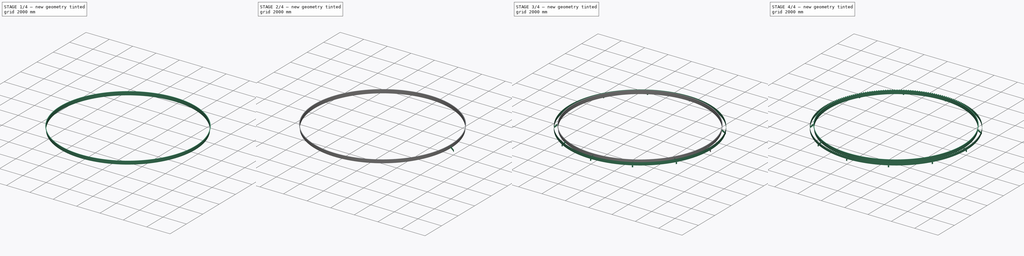
[diagram: build sequence overview — one tinted view per stage of 4, left to right]
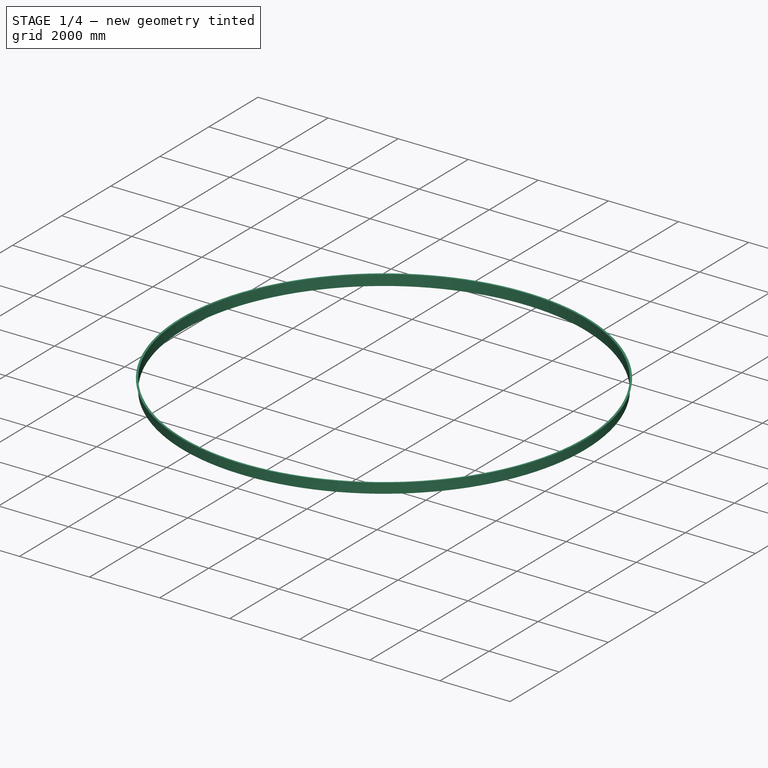
[diagram: stage 1 of 4 — iso view after this stage's code; geometry added in this stage tinted green]
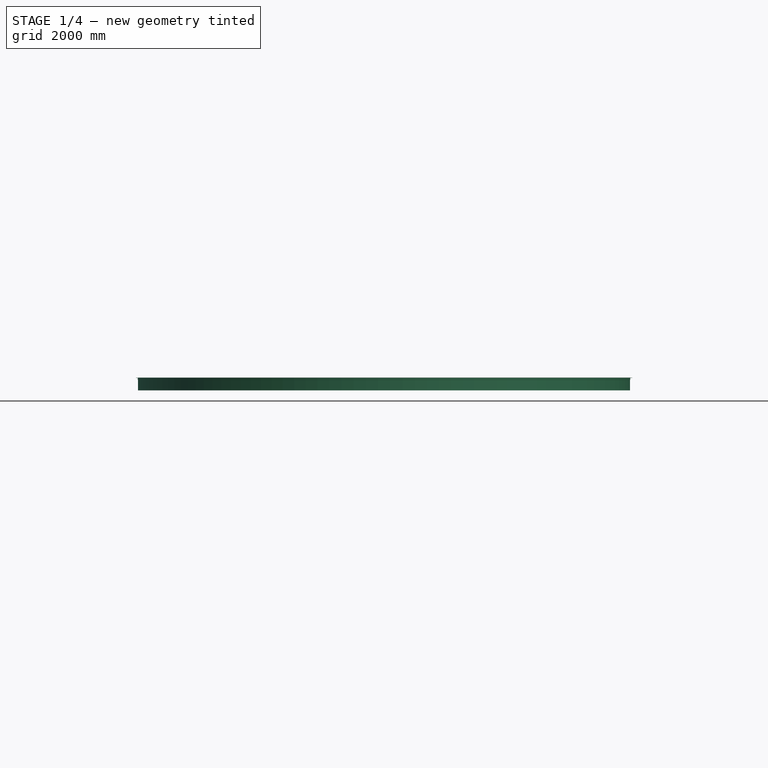
[diagram: stage 1 of 4 — front view after this stage's code; geometry added in this stage tinted green]
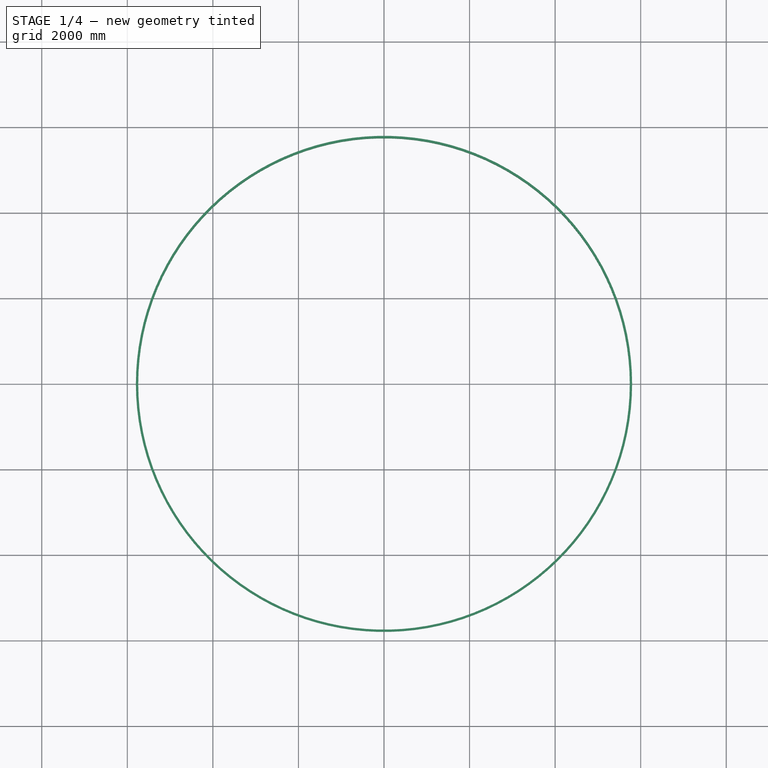
[diagram: stage 1 of 4 — top view after this stage's code; geometry added in this stage tinted green]
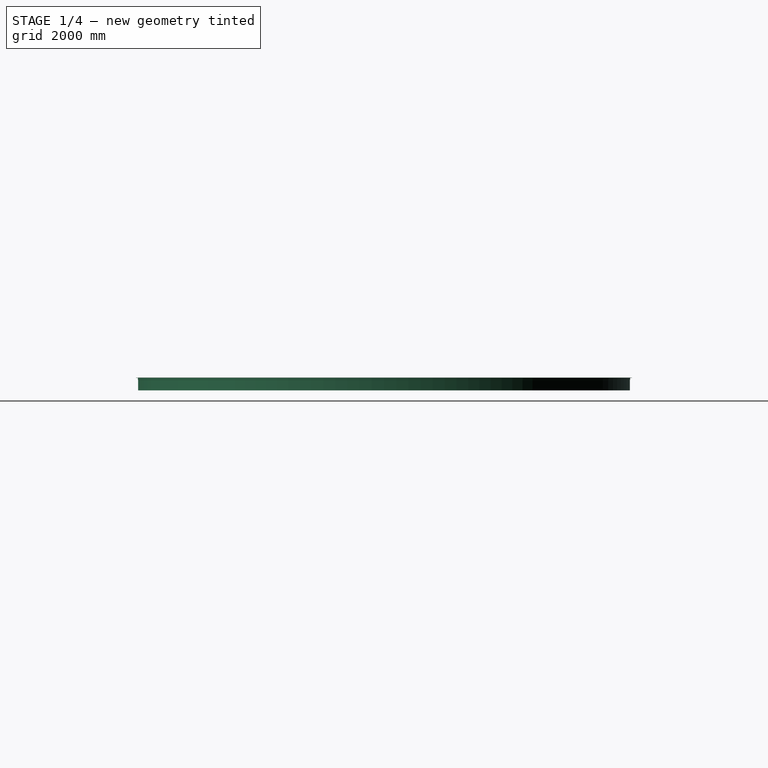
[diagram: stage 1 of 4 — right view after this stage's code; geometry added in this stage tinted green]
FCSTD DOCUMENT  (FreeCAD 1.0R39109 (Git))
Label: bufflePlate
License: All rights reserved
LicenseURL: https://en.wikipedia.org/wiki/All_rights_reserved
objects: Sketcher::SketchObject×4, Part::FeaturePython×4, Part::Revolution×3, Part::Extrusion×2, Part::Compound×2, Part::Cut×1, Spreadsheet::Sheet×1, Part::Mirroring×1, App::Part×1
note: 19 computed .brp shape members not serialized (recipe doc carries the construction recipe); baked Part::Feature solids carry a one-line shape summary decoded from their .brp

FEATURE [Sketcher::SketchObject] Sketch002
  ArcFitTolerance = 0
  FullyConstrained = true
  MakeInternals = false
  Placement = pos=(0,0,0) rot=(1,0,0;1.5708rad)
  expr: .Constraints.h0 = Spreadsheet.h0
  expr: Constraints[11] = Spreadsheet.dia / 2 - (450 + 300)
  sketch-geometry (4):
    g0: LineSegment StartX=5745 StartY=80 StartZ=0 EndX=5750 EndY=80 EndZ=0
    g1: LineSegment StartX=5750 StartY=80 StartZ=0 EndX=5750 EndY=380 EndZ=0
    g2: LineSegment StartX=5750 StartY=380 StartZ=0 EndX=5745 EndY=380 EndZ=0
    g3: LineSegment StartX=5745 StartY=380 StartZ=0 EndX=5745 EndY=80 EndZ=0
  constraints (12):
    c: Coincident(g0,g1)
    c: Coincident(g1,g2)
    c: Coincident(g2,g3)
    c: Coincident(g3,g0)
    c: Horizontal(g0)
    c: Horizontal(g2)
    c: Vertical(g1)
    c: Vertical(g3)
    c: DistanceX(g2,g2) = 5
    c: DistanceY(g1,g1) = 300  'h0'
    c: DistanceY(g-3,g1) = 130
    c: Distance(g1,g-2) = 5750
FEATURE [Part::Revolution] Revolve001
  Angle = 360
  Axis = (0,0,1)
  Base = (0,0,0)
  FaceMakerClass = Part::FaceMakerBullseye
  Solid = true
  Source = -> Sketch002
  Symmetric = false
FEATURE [Part::FeaturePython] AngleSteel  # WARN: FeaturePython — macro-defined, semantics opaque (R4)
  A = 50
  B = 50
  L = 1000
  Placement = pos=(5750,0,474) rot=(0,1,0;1.5708rad)
  Solid = false
  g0 = 7.85
  mass = 0
  size = 7
  standard = SS_Equal
  t = 6
  expr: .Placement.Base.x = Spreadsheet.dia / 2 - 750
FEATURE [Part::Revolution] Revolve002
  Angle = 360
  Axis = (0,0,1)
  Base = (0,0,0)
  FaceMakerClass = Part::FaceMakerBullseye
  Placement = pos=(0,0,-94) rot=(0,0,1;0rad)
  Solid = false
  Source = -> AngleSteel
  Symmetric = false
FEATURE [Part::Compound] Compound001  label="buffle001"
  Links = -> [Revolve001,Revolve002]
  Placement = pos=(0,0,-50) rot=(0,0,1;0rad)
FEATURE [App::Part] Part  label="buffle"
  Group = -> [Spreadsheet,Revolve,Revolve001,Array,Sketch002,Sketch,Sketch003,Sketch001,Cut,Extrude001,Extrude,AngleSteel,Revolve002,AngleSteel001,Mirror,Compound,Array001,Compound001]
  Origin = -> Origin
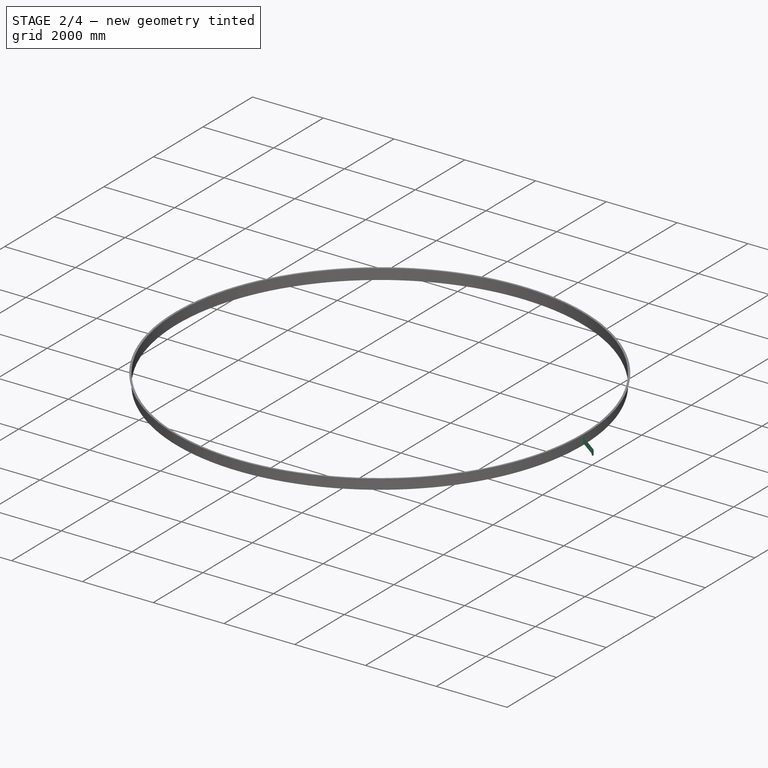
[diagram: stage 2 of 4 — iso view after this stage's code; geometry added in this stage tinted green]
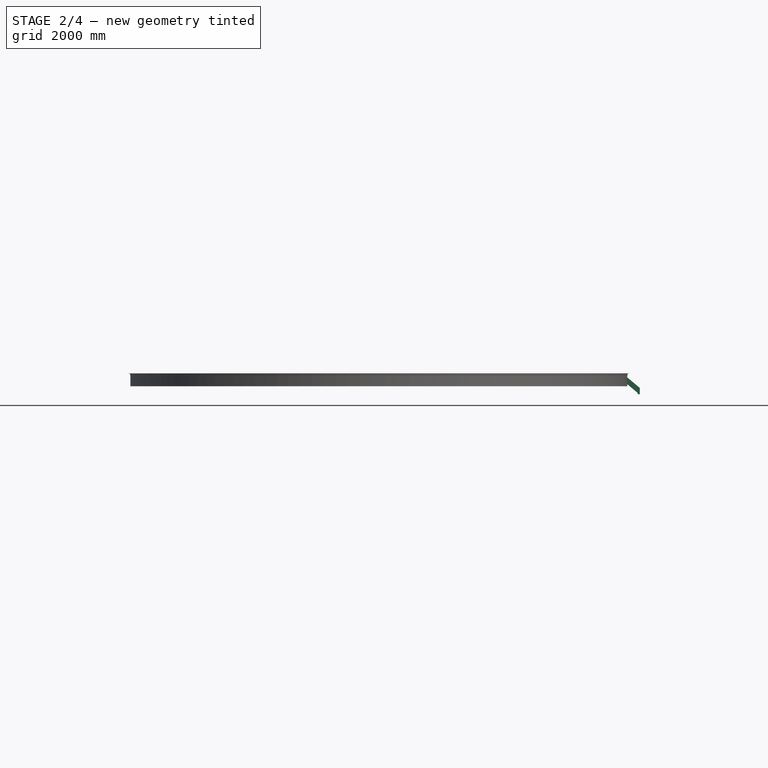
[diagram: stage 2 of 4 — front view after this stage's code; geometry added in this stage tinted green]
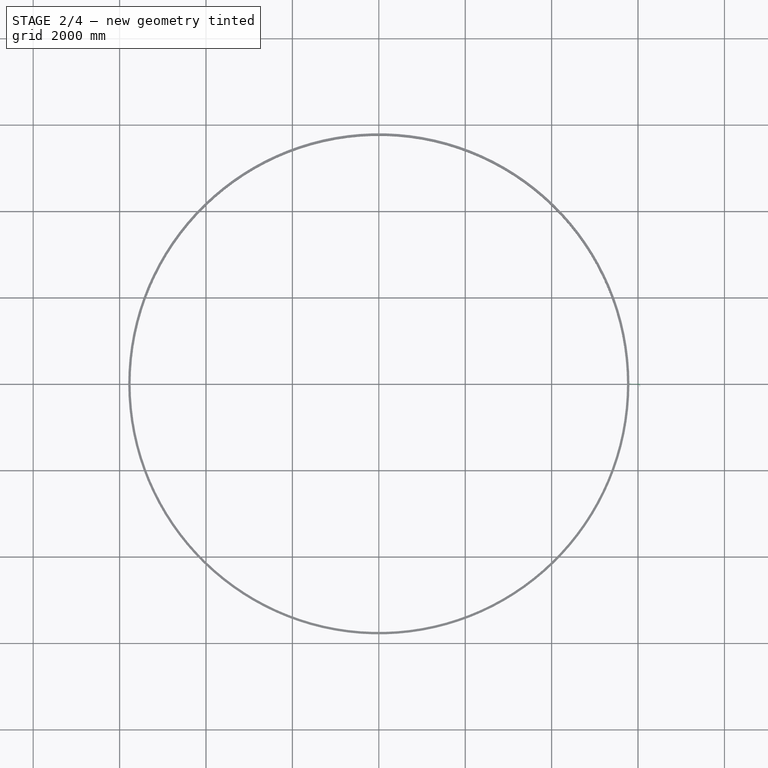
[diagram: stage 2 of 4 — top view after this stage's code; geometry added in this stage tinted green]
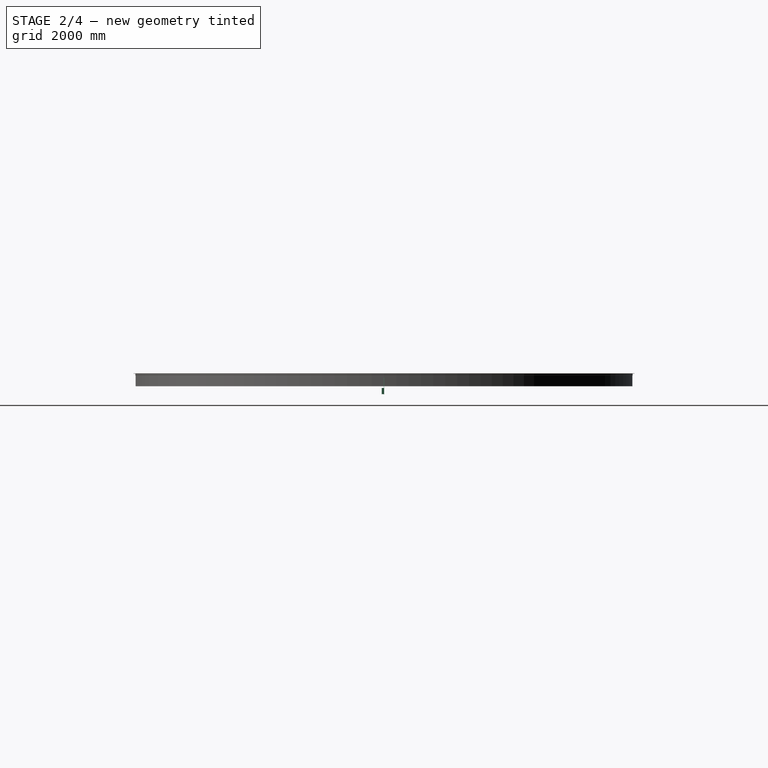
[diagram: stage 2 of 4 — right view after this stage's code; geometry added in this stage tinted green]
FEATURE [Sketcher::SketchObject] Sketch003
  ArcFitTolerance = 0
  FullyConstrained = true
  MakeInternals = false
  Placement = pos=(0,0,0) rot=(1,0,0;1.5708rad)
  expr: Constraints[10] = Spreadsheet.dia / 2 - (460 + 290)
  sketch-geometry (4):
    g0: LineSegment StartX=5750 StartY=80 StartZ=0 EndX=6040 EndY=-163.339 EndZ=0
    g1: LineSegment StartX=6040 StartY=-163.339 StartZ=0 EndX=6040 EndY=-6.69002 EndZ=0
    g2: LineSegment StartX=6040 StartY=-6.69002 StartZ=0 EndX=5750 EndY=236.649 EndZ=0
    g3: LineSegment StartX=5750 StartY=236.649 StartZ=0 EndX=5750 EndY=80 EndZ=0
  constraints (12):
    c: Coincident(g0,g1)
    c: Vertical(g1)
    c: Coincident(g1,g2)
    c: Coincident(g2,g3)
    c: Coincident(g3,g0)
    c: Vertical(g3)
    c: Parallel(g2,g0)
    c: DistanceX(g0,g0) = 290
    c: Distance(g1,g0) = 120
    c: Angle(g0,g3) = 2.26893
    c: Distance(g0,g-2) = 5750
    c: Distance(g0,g-1) = 80
FEATURE [Part::Extrusion] Extrude001
  Base = -> Sketch003
  Dir = (0,-1,2e-16)
  DirMode = 2
  FaceMakerClass = Part::FaceMakerBullseye
  FaceMakerMode = 3
  LengthFwd = 6
  LengthRev = 0
  Solid = true
  Symmetric = true
FEATURE [Spreadsheet::Sheet] Spreadsheet
  cells = A3='tankDia dia; B3(dia)=13000; A4='waterWay width; B4(W0)=450; A5='nonber of support; B5(n)=12; A6='buffleHight  h0; B6(h0)=300
FEATURE [Part::FeaturePython] AngleSteel001  # WARN: FeaturePython — macro-defined, semantics opaque (R4)
  A = 50
  B = 50
  L = 140
  Placement = pos=(6015,28,-150) rot=(0,0,1;3.14159rad)
  Solid = true
  g0 = 7.85
  mass = 0.620249
  size = 7
  standard = SS_Equal
  t = 6
  expr: .Placement.Base.x = Spreadsheet.dia / 2 - 485
FEATURE [Part::Mirroring] Mirror  label="AngleSteel001 (mirrored)"
  Base = (4800,0,0)
  Normal = (0,-1,0)
  Source = -> AngleSteel001
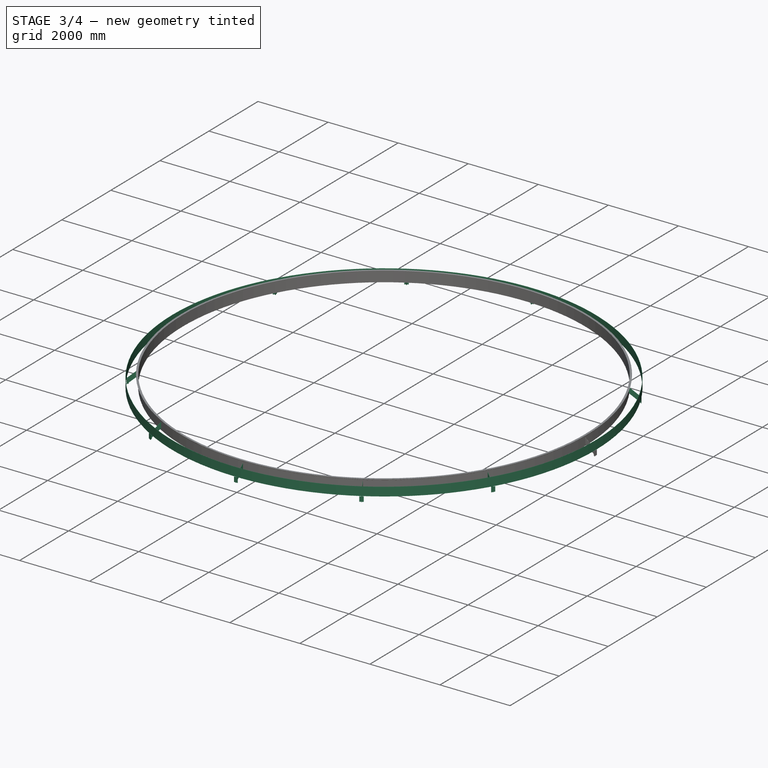
[diagram: stage 3 of 4 — iso view after this stage's code; geometry added in this stage tinted green]
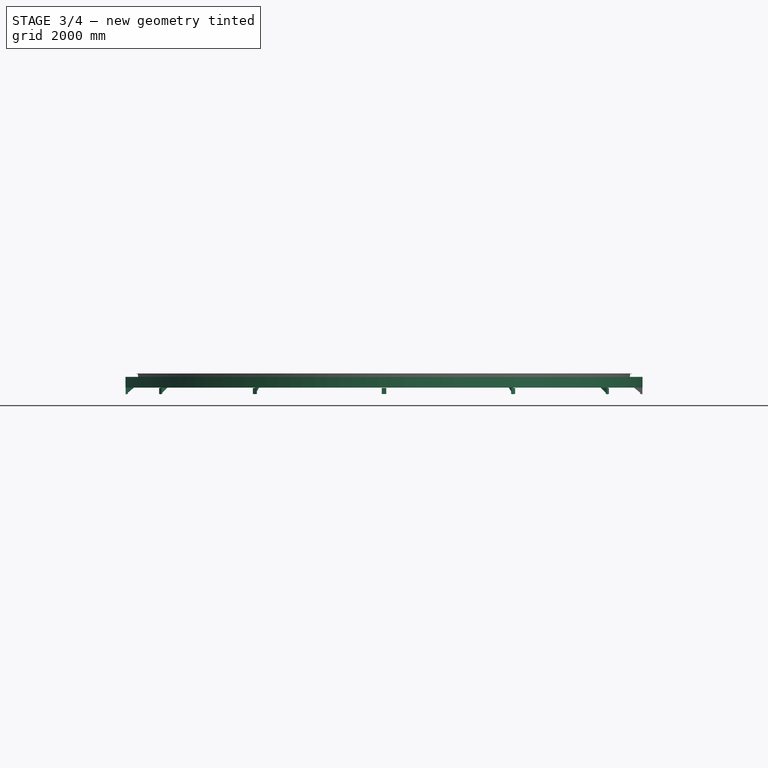
[diagram: stage 3 of 4 — front view after this stage's code; geometry added in this stage tinted green]
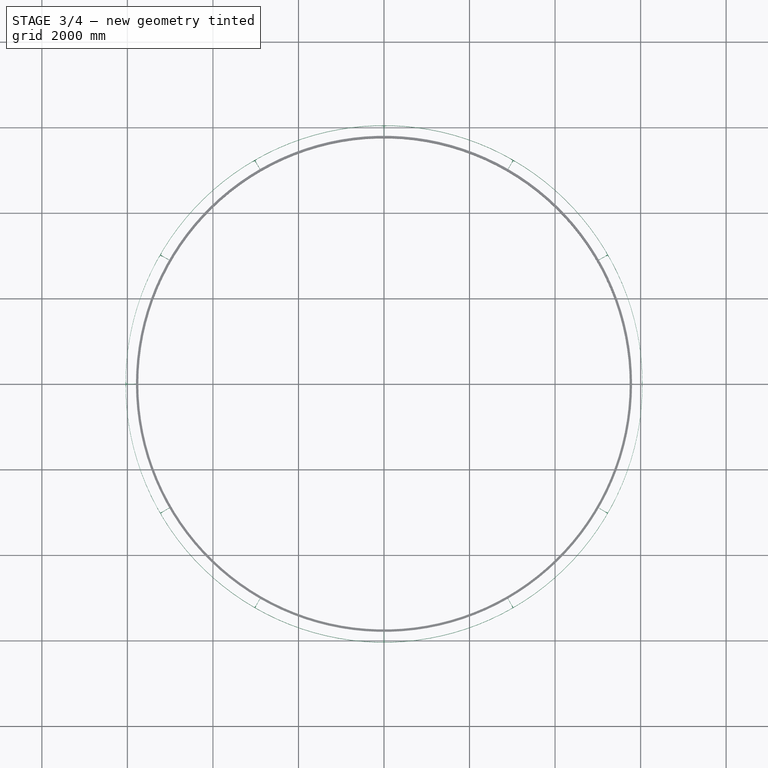
[diagram: stage 3 of 4 — top view after this stage's code; geometry added in this stage tinted green]
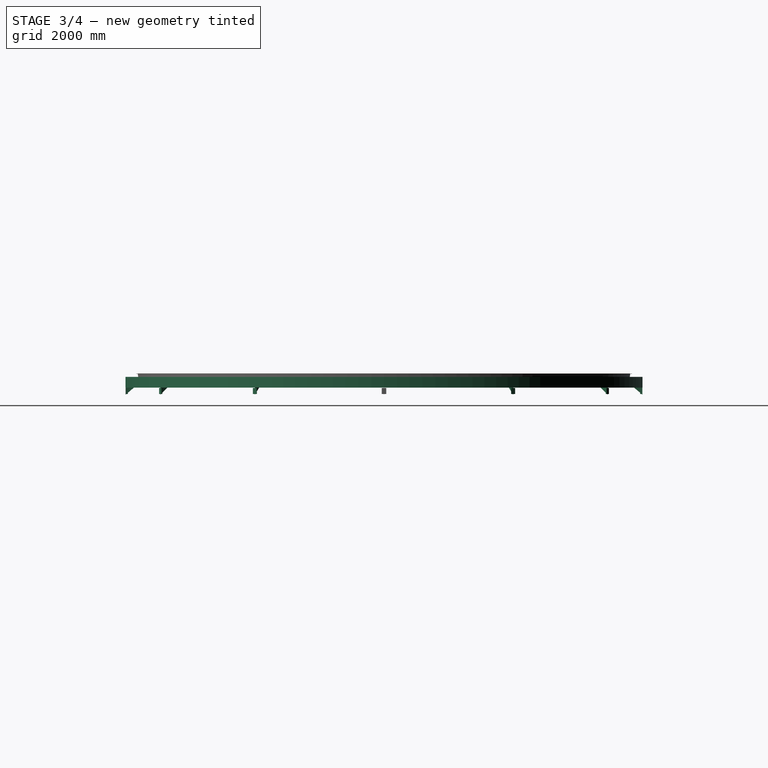
[diagram: stage 3 of 4 — right view after this stage's code; geometry added in this stage tinted green]
FEATURE [Sketcher::SketchObject] Sketch
  ArcFitTolerance = 0
  FullyConstrained = true
  MakeInternals = false
  Placement = pos=(0,0,0) rot=(1,0,0;1.5708rad)
  expr: Constraints[11] = Spreadsheet.dia / 2 - 460
  sketch-geometry (4):
    g0: LineSegment StartX=6045 StartY=0 StartZ=0 EndX=6040 EndY=0 EndZ=0
    g1: LineSegment StartX=6040 StartY=0 StartZ=0 EndX=6040 EndY=250 EndZ=0
    g2: LineSegment StartX=6040 StartY=250 StartZ=0 EndX=6045 EndY=250 EndZ=0
    g3: LineSegment StartX=6045 StartY=250 StartZ=0 EndX=6045 EndY=0 EndZ=0
  constraints (12):
    c: Coincident(g0,g1)
    c: Coincident(g1,g2)
    c: Coincident(g2,g3)
    c: Coincident(g3,g0)
    c: Horizontal(g0)
    c: Horizontal(g2)
    c: Vertical(g1)
    c: Vertical(g3)
    c: PointOnObject(g0,g-1)
    c: Distance(g2) = 5
    c: DistanceY(g1,g1) = 250
    c: DistanceX(g-1,g0) = 6040
FEATURE [Part::Revolution] Revolve
  Angle = 360
  Axis = (0,0,1)
  Base = (0,0,0)
  FaceMakerClass = Part::FaceMakerBullseye
  Solid = true
  Source = -> Sketch
  Symmetric = false
FEATURE [Part::Compound] Compound  label="support"
  Links = -> [AngleSteel001,Mirror,Extrude001]
FEATURE [Part::FeaturePython] Array001  # Draft array (typed FeaturePython)
  AlwaysSyncPlacement = false
  Angle = 360
  ArrayType = 1
  Axis = (0,0,1)
  Base = -> Compound
  Center = (0,0,0)
  Count = 12
  ExpandArray = false
  Fuse = false
  IntervalAxis = (0,0,0)
  IntervalX = (50,0,0)
  IntervalY = (0,50,0)
  IntervalZ = (0,0,50)
  NumberCircles = 3
  NumberPolar = 12
  NumberX = 2
  NumberY = 2
  NumberZ = 1
  PlacementList = 12 placements: [(0,0,0),(0,0,0),(0,0,0),(0,0,0),(0,0,0),(0,0,0),(0,0,0),(0,0,0),(0,0,0),(0,0,0),(0,0,0),(0,0,0)]
  RadialDistance = 50
  ScaleList = (12) [(1,1,1),(1,1,1),(1,1,1),(1,1,1),(1,1,1),(1,1,1),(1,1,1),(1,1,1),(1,1,1),(1,1,1),(1,1,1),(1,1,1)]
  Symmetry = 1
  TangentialDistance = 25
  expr: NumberPolar = Spreadsheet.n
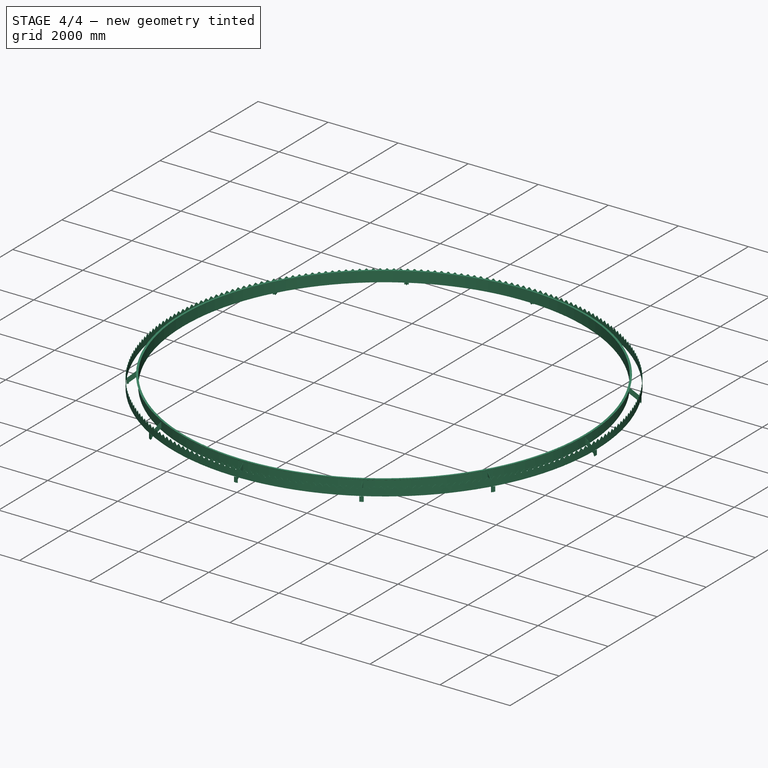
[diagram: stage 4 of 4 — iso view after this stage's code; geometry added in this stage tinted green]
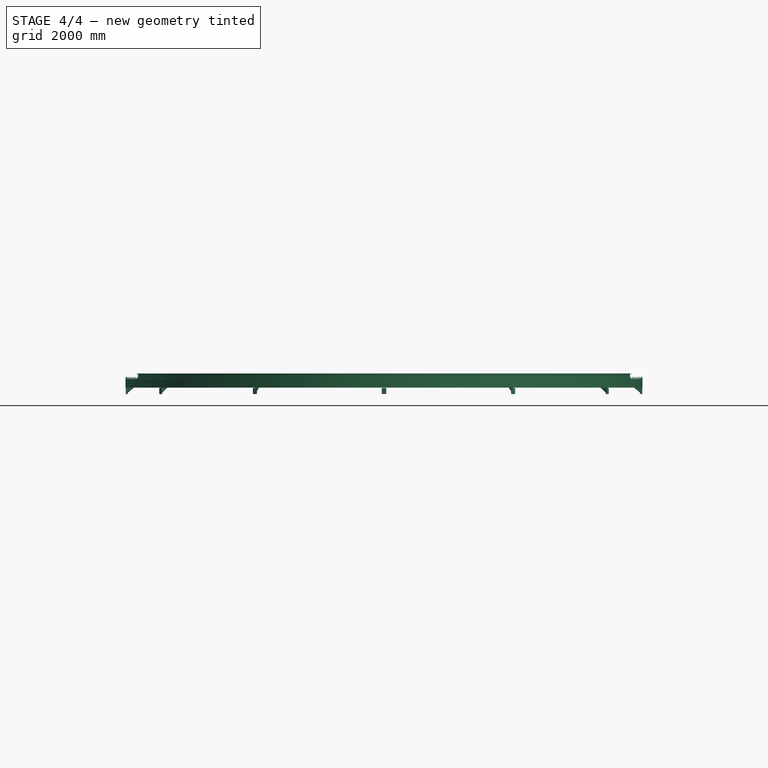
[diagram: stage 4 of 4 — front view after this stage's code; geometry added in this stage tinted green]
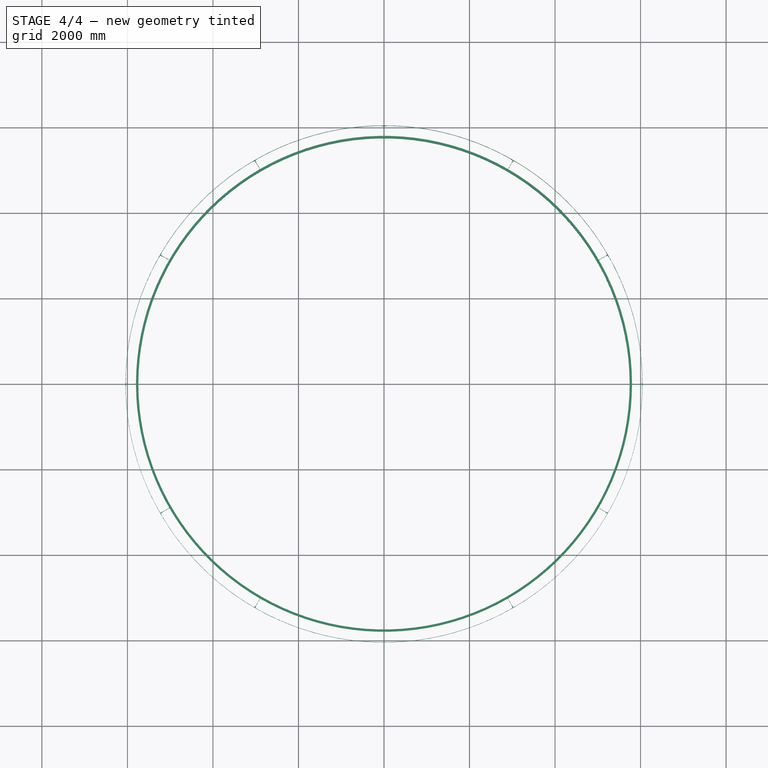
[diagram: stage 4 of 4 — top view after this stage's code; geometry added in this stage tinted green]
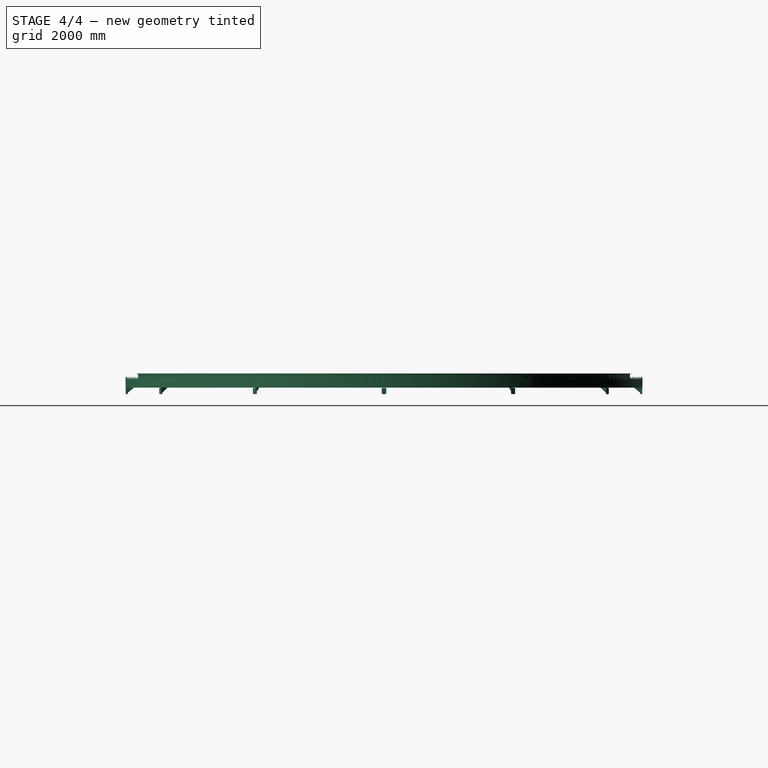
[diagram: stage 4 of 4 — right view after this stage's code; geometry added in this stage tinted green]
FEATURE [Sketcher::SketchObject] Sketch001
  ArcFitTolerance = 0
  ExternalGeometry = -> [Revolve]
  FullyConstrained = true
  MakeInternals = false
  Placement = pos=(0,0,0) rot=(1,0,0;1.5708rad)
  sketch-geometry (3):
    g0: LineSegment StartX=-70 StartY=250 StartZ=0 EndX=70 EndY=250 EndZ=0
    g1: LineSegment StartX=70 StartY=250 StartZ=0 EndX=0 EndY=180 EndZ=0
    g2: LineSegment StartX=0 StartY=180 StartZ=0 EndX=-70 EndY=250 EndZ=0
  constraints (9):
    c: Horizontal(g0)
    c: Coincident(g0,g1)
    c: PointOnObject(g1,g-2)
    c: Coincident(g1,g2)
    c: Coincident(g2,g0)
    c: Angle(g1,g2) = 1.5708
    c: PointOnObject(g0,g-3)
    c: DistanceY(g1,g0) = 70
    c: Angle(g2,g-2) = 2.35619
FEATURE [Part::Extrusion] Extrude
  Base = -> Sketch001
  Dir = (0,-1,2e-16)
  DirMode = 2
  FaceMakerClass = Part::FaceMakerBullseye
  FaceMakerMode = 3
  LengthFwd = 10000
  LengthRev = 0
  Solid = true
  Symmetric = false
FEATURE [Part::FeaturePython] Array  # Draft array (typed FeaturePython)
  AlwaysSyncPlacement = false
  Angle = 360
  ArrayType = 1
  Axis = (0,0,1)
  Base = -> Extrude
  Center = (0,0,0)
  Count = 236
  ExpandArray = false
  Fuse = false
  IntervalAxis = (0,0,0)
  IntervalX = (50,0,0)
  IntervalY = (0,50,0)
  IntervalZ = (0,0,50)
  NumberCircles = 3
  NumberPolar = 236
  NumberX = 2
  NumberY = 2
  NumberZ = 1
  PlacementList = 236 placements: [(0,0,0),(0,0,0),(0,0,0),(0,0,0),(0,0,0),(0,0,0),(0,0,0),(0,0,0),(0,0,0),(0,0,0),(0,0,0),(0,0,0),(0,0,0),(0,0,0),(0,0,0),(0,0,0),(0,0,0),(0,0,0),(0,0,0),(0,0,0),(0,0,0),(0,0,0),(0,0,0),(0,0,0),(0,0,0),(0,0,0),(0,0,0),(0,0,0),(0,0,0),(0,0,0),(0,0,0),(0,0,0),(0,0,0),(0,0,0),(0,0,0),(0,0,0),(0,0,0),(0,0,0),(0,0,0),(0,0,0),(0,0,0),(0,0,0),(0,0,0),(0,0,0),(0,0,0),(0,0,0),(0,0,0),(0,0,0),(0,0,0),(0,0,0),+186 more]
  RadialDistance = 50
  ScaleList = (236) [(1,1,1),(1,1,1),(1,1,1),(1,1,1),(1,1,1),(1,1,1),(1,1,1),(1,1,1),(1,1,1),(1,1,1),(1,1,1),(1,1,1),(1,1,1),(1,1,1),(1,1,1),(1,1,1),(1,1,1),(1,1,1),+218 more]
  Symmetry = 1
  TangentialDistance = 25
  expr: NumberPolar = Spreadsheet.dia / 55
FEATURE [Part::Cut] Cut  label="weir"
  Base = -> Revolve
  Tool = -> Array
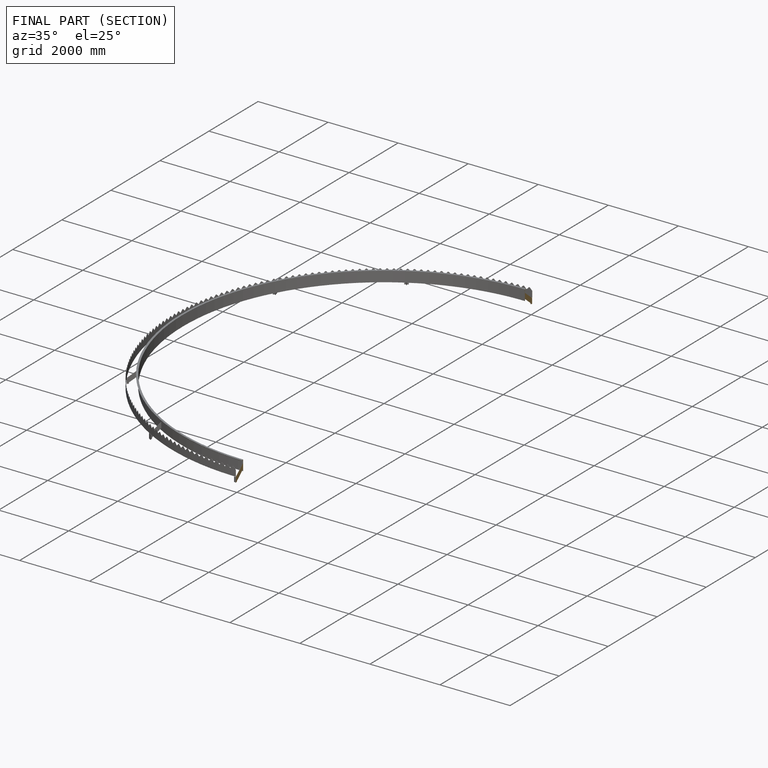
[diagram: finished part — half-section view (interior)]
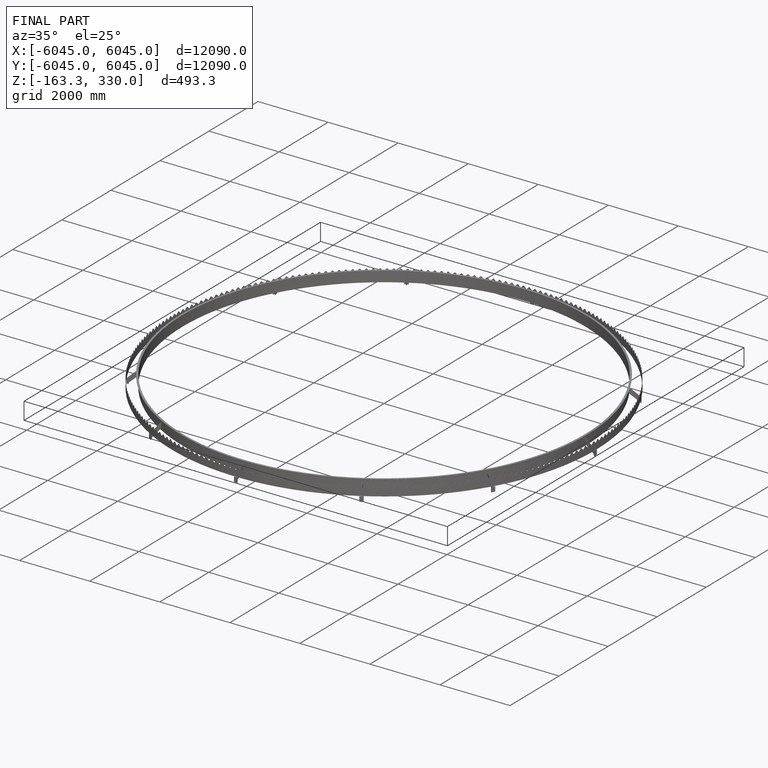
[diagram: finished part — iso view with bounding-box wireframe]
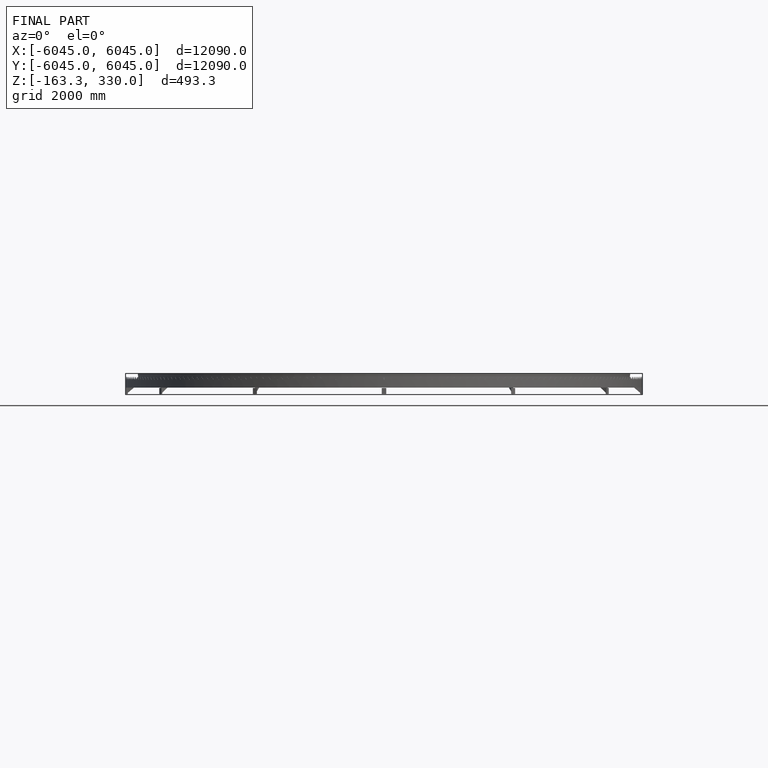
[diagram: finished part — front view with bounding-box wireframe]
